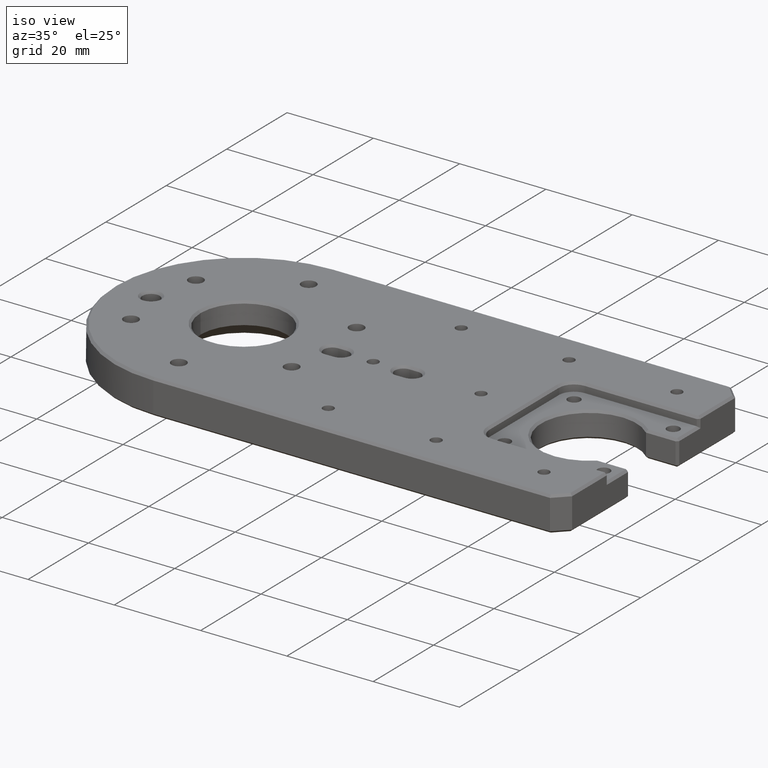
[diagram: clean part render]
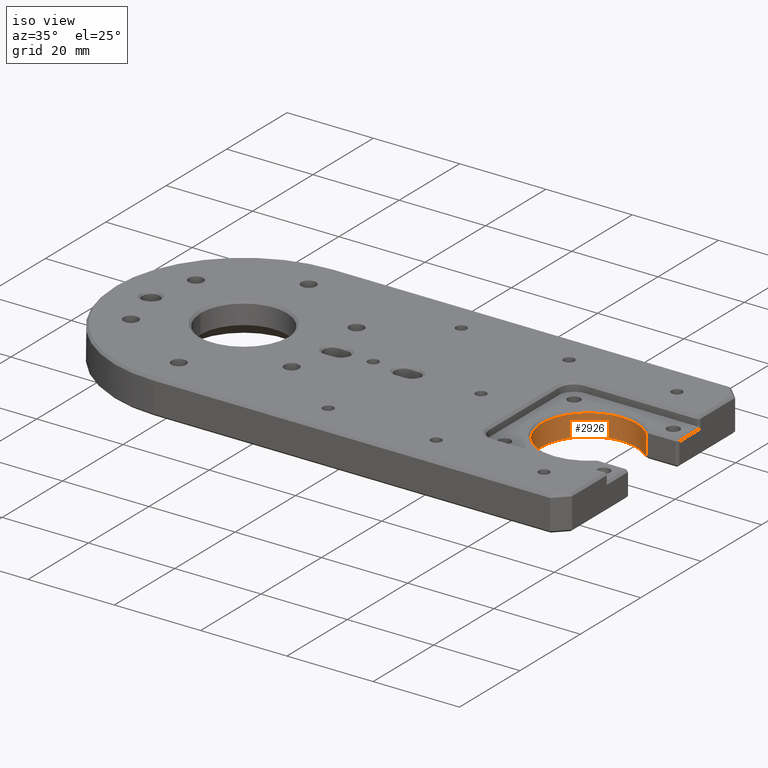
[diagram: same view with one face highlighted and labeled with its STEP entity id]
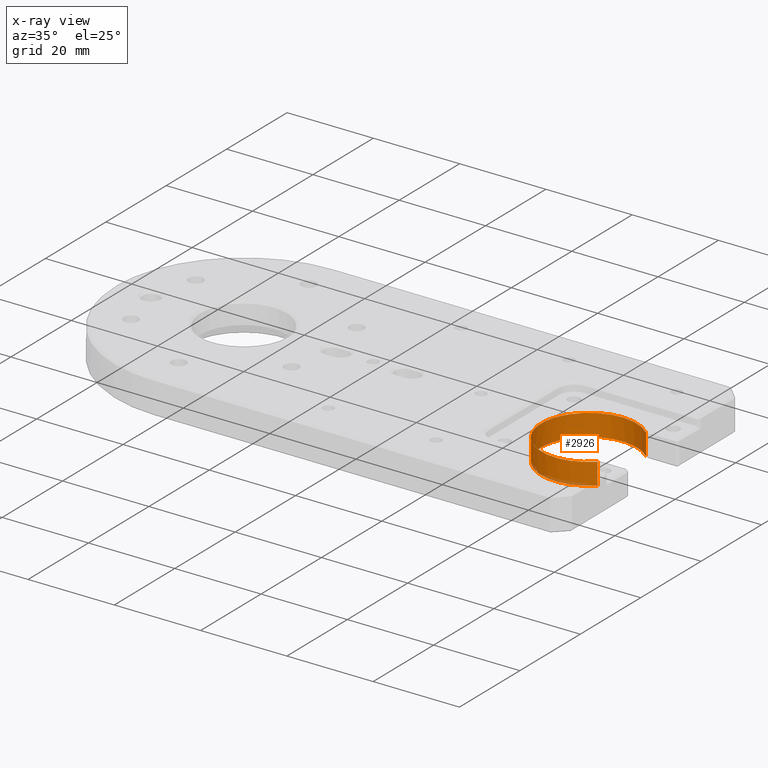
[diagram: x-ray of the same camera — body ghosted, the highlighted face saturated]
A machine part, iso view. The second image highlights one B-rep face of the part: STEP entity #2926.
The next image is the same camera in x-ray: the body ghosted, the highlighted face saturated — about 3% of this face is hidden behind the body in this view.
In plain terms, the highlighted cylindrical surface (partial cylindrical patch) has radius 11.05 mm, axis along (-0, -0, 1).
Its self-contained STEP definition (entity closure, byte-faithful):
#144 = CARTESIAN_POINT ( 'NONE',  ( 87.62249959002950561, -8.000000000000003553, -8.000000000000000000 ) ) ;
#148 = AXIS2_PLACEMENT_3D ( 'NONE', #2947, #2305, #594 ) ;
#278 = CARTESIAN_POINT ( 'NONE',  ( 87.62249959002950561, 8.000000000000000000, -7.500000000000013323 ) ) ;
#325 = VECTOR ( 'NONE', #1324, 1000.000000000000000 ) ;
#390 = CIRCLE ( 'NONE', #3018, 11.04999999999999005 ) ;
#594 = DIRECTION ( 'NONE',  ( 1.000000000000000000, 8.881784197001251337E-16, 0.0000000000000000000 ) ) ;
#730 = CARTESIAN_POINT ( 'NONE',  ( 87.62249959002950561, -8.000000000000003553, -2.499999999999986677 ) ) ;
#794 = DIRECTION ( 'NONE',  ( 1.000000000000000000, 0.0000000000000000000, 0.0000000000000000000 ) ) ;
#864 = DIRECTION ( 'NONE',  ( 1.000000000000000000, 0.0000000000000000000, 0.0000000000000000000 ) ) ;
#964 = AXIS2_PLACEMENT_3D ( 'NONE', #3727, #3361, #2979 ) ;
#1144 = DIRECTION ( 'NONE',  ( -0.0000000000000000000, -0.0000000000000000000, 1.000000000000000000 ) ) ;
#1147 = VERTEX_POINT ( 'NONE', #3326 ) ;
#1215 = EDGE_CURVE ( 'NONE', #1147, #3686, #2633, .T. ) ;
#1324 = DIRECTION ( 'NONE',  ( -0.0000000000000000000, -0.0000000000000000000, 1.000000000000000000 ) ) ;
#1432 = VERTEX_POINT ( 'NONE', #1865 ) ;
#1468 = CYLINDRICAL_SURFACE ( 'NONE', #3533, 11.04999999999999005 ) ;
#1532 = DIRECTION ( 'NONE',  ( -0.0000000000000000000, -0.0000000000000000000, -1.000000000000000000 ) ) ;
#1539 = CIRCLE ( 'NONE', #964, 11.04999999999999005 ) ;
#1842 = CARTESIAN_POINT ( 'NONE',  ( 80.00000000000001421, 0.0000000000000000000, -7.500000000000013323 ) ) ;
#1865 = CARTESIAN_POINT ( 'NONE',  ( 87.62249959002950561, -8.000000000000003553, -7.500000000000013323 ) ) ;
#2305 = DIRECTION ( 'NONE',  ( -0.0000000000000000000, -0.0000000000000000000, -1.000000000000000000 ) ) ;
#2483 = ORIENTED_EDGE ( 'NONE', *, *, #1215, .T. ) ;
#2531 = CARTESIAN_POINT ( 'NONE',  ( 80.00000000000001421, 0.0000000000000000000, -8.000000000000000000 ) ) ;
#2633 = CIRCLE ( 'NONE', #148, 11.04999999999999005 ) ;
#2772 = ORIENTED_EDGE ( 'NONE', *, *, #4031, .T. ) ;
#2838 = VERTEX_POINT ( 'NONE', #730 ) ;
#2926 = ADVANCED_FACE ( 'NONE', ( #3173 ), #1468, .F. ) ;
#2947 = CARTESIAN_POINT ( 'NONE',  ( 80.00000000000001421, 0.0000000000000000000, -7.500000000000013323 ) ) ;
#2966 = CARTESIAN_POINT ( 'NONE',  ( 87.62249959002950561, 8.000000000000000000, -8.000000000000000000 ) ) ;
#2979 = DIRECTION ( 'NONE',  ( -1.000000000000000000, 0.0000000000000000000, 0.0000000000000000000 ) ) ;
#3011 = LINE ( 'NONE', #2966, #325 ) ;
#3018 = AXIS2_PLACEMENT_3D ( 'NONE', #1842, #1532, #794 ) ;
#3058 = ORIENTED_EDGE ( 'NONE', *, *, #3510, .T. ) ;
#3173 = FACE_OUTER_BOUND ( 'NONE', #3621, .T. ) ;
#3326 = CARTESIAN_POINT ( 'NONE',  ( 68.95000000000003126, 0.0000000000000000000, -7.500000000000013323 ) ) ;
#3361 = DIRECTION ( 'NONE',  ( 0.0000000000000000000, 0.0000000000000000000, 1.000000000000000000 ) ) ;
#3419 = VERTEX_POINT ( 'NONE', #3999 ) ;
#3510 = EDGE_CURVE ( 'NONE', #1432, #1147, #390, .T. ) ;
#3533 = AXIS2_PLACEMENT_3D ( 'NONE', #2531, #3904, #864 ) ;
#3621 = EDGE_LOOP ( 'NONE', ( #3836, #2772, #4218, #3058, #2483 ) ) ;
#3686 = VERTEX_POINT ( 'NONE', #278 ) ;
#3727 = CARTESIAN_POINT ( 'NONE',  ( 80.00000000000001421, 0.0000000000000000000, -2.499999999999986677 ) ) ;
#3733 = EDGE_CURVE ( 'NONE', #3686, #3419, #3011, .T. ) ;
#3836 = ORIENTED_EDGE ( 'NONE', *, *, #3733, .T. ) ;
#3902 = EDGE_CURVE ( 'NONE', #1432, #2838, #3916, .T. ) ;
#3904 = DIRECTION ( 'NONE',  ( -0.0000000000000000000, -0.0000000000000000000, 1.000000000000000000 ) ) ;
#3916 = LINE ( 'NONE', #144, #4322 ) ;
#3999 = CARTESIAN_POINT ( 'NONE',  ( 87.62249959002950561, 8.000000000000000000, -2.499999999999986677 ) ) ;
#4031 = EDGE_CURVE ( 'NONE', #3419, #2838, #1539, .T. ) ;
#4218 = ORIENTED_EDGE ( 'NONE', *, *, #3902, .F. ) ;
#4322 = VECTOR ( 'NONE', #1144, 1000.000000000000000 ) ;